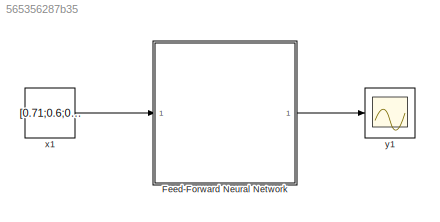
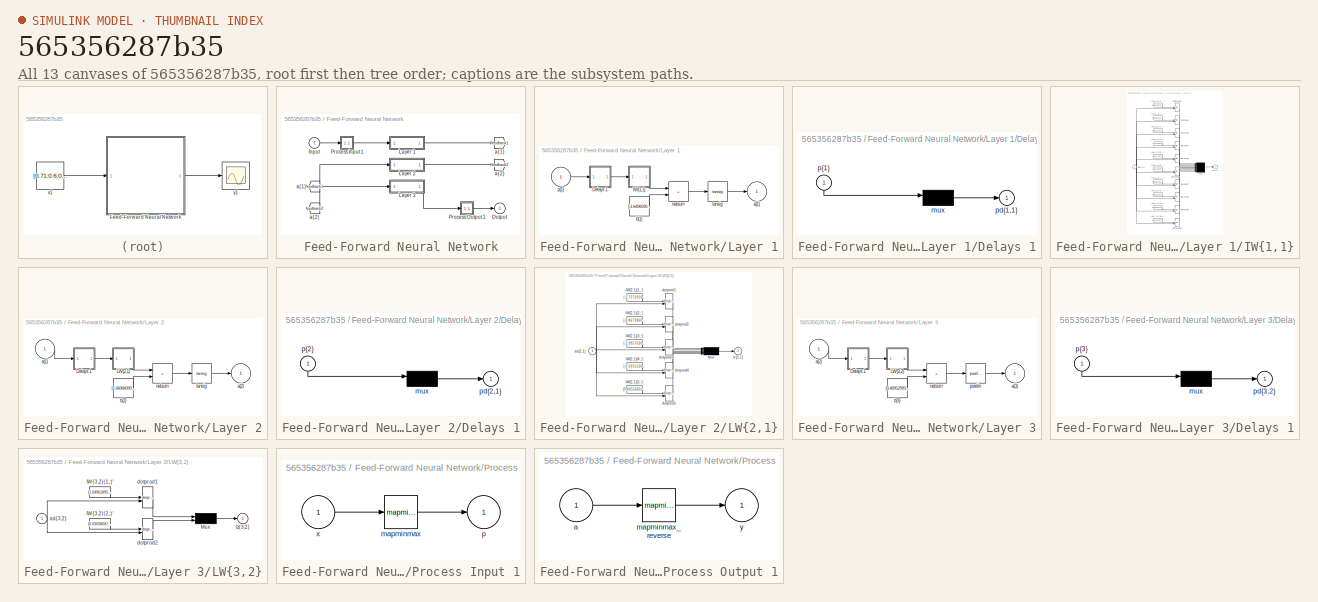
[diagram: thumbnail index - all 13 canvases of the model, root first then tree order]
MODEL slx_565356287b35
KIND model
CONFIG AbsTol = auto
CONFIG EnableMultiTasking = off
CONFIG FixedStep = auto
CONFIG MaxStep = auto
CONFIG MinStep = auto
CONFIG RelTol = 1e-3
CONFIG SampleTimeConstraint = Unconstrained
CONFIG SolverName = VariableStepAuto
CONFIG StartTime = 0.0
CONFIG StopTime = 10.0
BLOCK [SubSystem] Feed-Forward Neural Network
BLOCK [From] Feed-Forward Neural Network/ a{1} 
  GotoTag = feedback1
BLOCK [From] Feed-Forward Neural Network/ a{2} 
  GotoTag = feedback2
BLOCK [Inport] Feed-Forward Neural Network/Input
  PortDimensions = 8
  SampleTime = 0.1
BLOCK [SubSystem] Feed-Forward Neural Network/Layer 1
BLOCK [SubSystem] Feed-Forward Neural Network/Layer 1/Delays 1
BLOCK [Mux] Feed-Forward Neural Network/Layer 1/Delays 1/mux
  Inputs = 1
BLOCK [Outport] Feed-Forward Neural Network/Layer 1/Delays 1/pd{1,1}
BLOCK [Inport] Feed-Forward Neural Network/Layer 1/Delays 1/p{1}
  NameLocation = left
  PortDimensions = 8
  SampleTime = 0.1
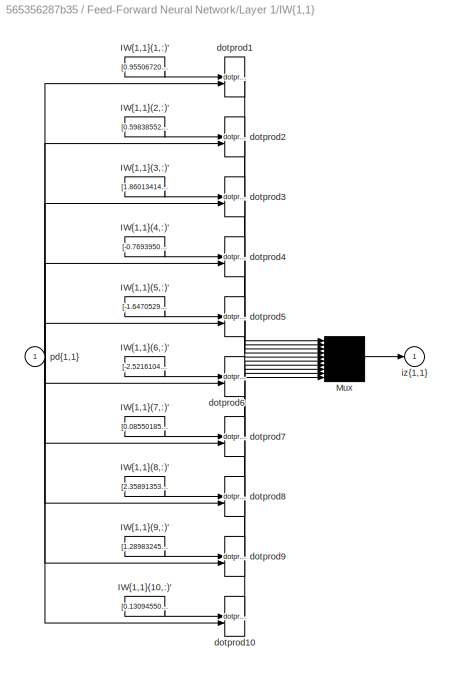
BLOCK [SubSystem] Feed-Forward Neural Network/Layer 1/IW{1,1}
BLOCK [Constant] Feed-Forward Neural Network/Layer 1/IW{1,1}/IW{1,1}(1,:)'
  Value = [0.9550672020210464463474409058107994496822357177734375;1.0619309266613214948193899545003660023212432861328125;0.84211140958875574380471107360790483653545379638671875;-0.220935913211211476525619445965276099741458892822265625;-0.84919262536313111500163586242706514894962310791015625;-0.3439777435312880715656547181424684822559356689453125;-0.9604815660913406105692047276534140110015869140625;0.9069616...<+46ch>
BLOCK [Constant] Feed-Forward Neural Network/Layer 1/IW{1,1}/IW{1,1}(10,:)'
  Value = [0.13094550257733150733230331752565689384937286376953125;-0.44310732298941513107592982123605906963348388671875;0.190013691803982975869757865439169108867645263671875;-0.5031790565881590904240283634862862527370452880859375;-1.3775142568912410734327522732201032340526580810546875;-2.71766299346461348562797866179607808589935302734375;-0.51708237107644483554480530074215494096279144287109375;-4.436536297...<+40ch>
BLOCK [Constant] Feed-Forward Neural Network/Layer 1/IW{1,1}/IW{1,1}(2,:)'
  Value = [0.59838552526456412206101731499074958264827728271484375;-0.342462421324904509045694567248574458062648773193359375;-0.342675805245884312899562473830883391201496124267578125;-1.71904317433271014436968471272848546504974365234375;-1.6904320403915971127162265474908053874969482421875;-0.7842827305839652485275337312486954033374786376953125;-0.70578545855254670726708354777656495571136474609375;0.63127173...<+46ch>
BLOCK [Constant] Feed-Forward Neural Network/Layer 1/IW{1,1}/IW{1,1}(3,:)'
  Value = [1.860134149250209478765327730798162519931793212890625;0.79559039072379011958702221818384714424610137939453125;1.22534084182909364102442850708030164241790771484375;2.18011250663608091571177283185534179210662841796875;-2.702187688561667133768651183345355093479156494140625;0.68479484410663771232208318906486965715885162353515625;1.088999670596825009027952546603046357631683349609375;-0.132623797761235...<+40ch>
BLOCK [Constant] Feed-Forward Neural Network/Layer 1/IW{1,1}/IW{1,1}(4,:)'
  Value = [-0.76939509688576090962186526667210273444652557373046875;3.015793683985509954226245099562220275402069091796875;0.144674661315467911748555707163177430629730224609375;-0.36591836890077000798981998741510324180126190185546875;2.414196432338601372435960001894272863864898681640625;-2.119416613542585370311144288280047476291656494140625;-1.627410657427237339334169519133865833282470703125;0.25389548329556...<+40ch>
BLOCK [Constant] Feed-Forward Neural Network/Layer 1/IW{1,1}/IW{1,1}(5,:)'
  Value = [-1.6470529390002484060318010961054824292659759521484375;3.964281501994268541722021836903877556324005126953125;0.782104558886292711150645118323154747486114501953125;1.132175008866808330054709585965611040592193603515625;0.054081566514974345472044348070994601584970951080322265625;-0.9132364865315205637585904696607030928134918212890625;-1.7536609484188543373051061280420981347560882568359375;-0.571265...<+48ch>
BLOCK [Constant] Feed-Forward Neural Network/Layer 1/IW{1,1}/IW{1,1}(6,:)'
  Value = [-2.5216104669478571764784646802581846714019775390625;1.289592944756588366317373584024608135223388671875;1.399920867973824645247304943040944635868072509765625;-0.85390194285240206273357443933491595089435577392578125;-0.70310740144474248580763742211274802684783935546875;-0.62207281185426188674369996078894473612308502197265625;4.21162479813697387953652651049196720123291015625;0.740312164151335272421...<+32ch>
BLOCK [Constant] Feed-Forward Neural Network/Layer 1/IW{1,1}/IW{1,1}(7,:)'
  Value = [0.08550185158370304794317462437902577221393585205078125;-1.7577471491265368452872053239843808114528656005859375;1.6072576084080980596269228044548071920871734619140625;0.312660138488050243221749724398250691592693328857421875;-0.45996840806510796983985756014590151607990264892578125;-1.3584484510814860414029681123793125152587890625;0.326177796523812901785532858411897905170917510986328125;0.525173928...<+45ch>
BLOCK [Constant] Feed-Forward Neural Network/Layer 1/IW{1,1}/IW{1,1}(8,:)'
  Value = [2.358913531123170148617873564944602549076080322265625;0.1779586187219111270696458859674748964607715606689453125;-1.2348329132143056607873177199508063495159149169921875;-1.9085163259384410050500946454121731221675872802734375;0.398080501901759420402271416605799458920955657958984375;0.2050653827957333585896293470796081237494945526123046875;-1.3156193814509424822034588942187838256359100341796875;-0.7...<+50ch>
BLOCK [Constant] Feed-Forward Neural Network/Layer 1/IW{1,1}/IW{1,1}(9,:)'
  Value = [1.289832458237830881131458227173425257205963134765625;-0.1513905596614662230070535997583647258579730987548828125;-0.493368686672613687704824769753031432628631591796875;0.196517638129850069628190567527781240642070770263671875;-0.411655250453523191556115534694981761276721954345703125;1.3613158007695032036821203291765414178371429443359375;1.5586628389293248897473631586763076484203338623046875;-0.428...<+52ch>
BLOCK [Mux] Feed-Forward Neural Network/Layer 1/IW{1,1}/Mux
  Inputs = 10
BLOCK [Reference] Feed-Forward Neural Network/Layer 1/IW{1,1}/dotprod1  REF=neural/Weight Functions/dotprod
  SourceBlock = neural/Weight Functions/dotprod
  SourceType = DOTPROD
BLOCK [Reference] Feed-Forward Neural Network/Layer 1/IW{1,1}/dotprod10  REF=neural/Weight Functions/dotprod
  SourceBlock = neural/Weight Functions/dotprod
  SourceType = DOTPROD
BLOCK [Reference] Feed-Forward Neural Network/Layer 1/IW{1,1}/dotprod2  REF=neural/Weight Functions/dotprod
  SourceBlock = neural/Weight Functions/dotprod
  SourceType = DOTPROD
BLOCK [Reference] Feed-Forward Neural Network/Layer 1/IW{1,1}/dotprod3  REF=neural/Weight Functions/dotprod
  SourceBlock = neural/Weight Functions/dotprod
  SourceType = DOTPROD
BLOCK [Reference] Feed-Forward Neural Network/Layer 1/IW{1,1}/dotprod4  REF=neural/Weight Functions/dotprod
  SourceBlock = neural/Weight Functions/dotprod
  SourceType = DOTPROD
BLOCK [Reference] Feed-Forward Neural Network/Layer 1/IW{1,1}/dotprod5  REF=neural/Weight Functions/dotprod
  SourceBlock = neural/Weight Functions/dotprod
  SourceType = DOTPROD
BLOCK [Reference] Feed-Forward Neural Network/Layer 1/IW{1,1}/dotprod6  REF=neural/Weight Functions/dotprod
  SourceBlock = neural/Weight Functions/dotprod
  SourceType = DOTPROD
BLOCK [Reference] Feed-Forward Neural Network/Layer 1/IW{1,1}/dotprod7  REF=neural/Weight Functions/dotprod
  SourceBlock = neural/Weight Functions/dotprod
  SourceType = DOTPROD
BLOCK [Reference] Feed-Forward Neural Network/Layer 1/IW{1,1}/dotprod8  REF=neural/Weight Functions/dotprod
  SourceBlock = neural/Weight Functions/dotprod
  SourceType = DOTPROD
BLOCK [Reference] Feed-Forward Neural Network/Layer 1/IW{1,1}/dotprod9  REF=neural/Weight Functions/dotprod
  SourceBlock = neural/Weight Functions/dotprod
  SourceType = DOTPROD
BLOCK [Outport] Feed-Forward Neural Network/Layer 1/IW{1,1}/iz{1,1}
BLOCK [Inport] Feed-Forward Neural Network/Layer 1/IW{1,1}/pd{1,1}
  PortDimensions = 8
  SampleTime = 0.1
BLOCK [Outport] Feed-Forward Neural Network/Layer 1/a{1}
  InitialOutput = [0;0;0;0;0;0;0;0;0;0]
BLOCK [Constant] Feed-Forward Neural Network/Layer 1/b{1}
  Value = [-1.649603094174988182629704169812612235546112060546875;-0.7159807765740386908959180800593458116054534912109375;-1.23397857794599818959113690652884542942047119140625;-0.5267978681864480261509697811561636626720428466796875;0.47660256084606411608461939977132715284824371337890625;-0.31840654326915862615265950807952322065830230712890625;0.0039216978998235056674825926847915980033576488494873046875;0.43...<+161ch>
BLOCK [Sum] Feed-Forward Neural Network/Layer 1/netsum
  IconShape = rectangular
  InputSameDT = on
  Inputs = 2
  OutDataTypeStr = Inherit: Same as first input
  SaturateOnIntegerOverflow = on
BLOCK [Inport] Feed-Forward Neural Network/Layer 1/p{1}
  PortDimensions = 8
  SampleTime = 0.1
BLOCK [Reference] Feed-Forward Neural Network/Layer 1/tansig  REF=neural/Transfer Functions/tansig
  SourceBlock = neural/Transfer Functions/tansig
  SourceType = TANSIG
BLOCK [SubSystem] Feed-Forward Neural Network/Layer 2
BLOCK [SubSystem] Feed-Forward Neural Network/Layer 2/Delays 1
BLOCK [Mux] Feed-Forward Neural Network/Layer 2/Delays 1/mux
  Inputs = 1
BLOCK [Outport] Feed-Forward Neural Network/Layer 2/Delays 1/pd{2,1}
BLOCK [Inport] Feed-Forward Neural Network/Layer 2/Delays 1/p{2}
  NameLocation = left
  PortDimensions = 10
  SampleTime = 0.1
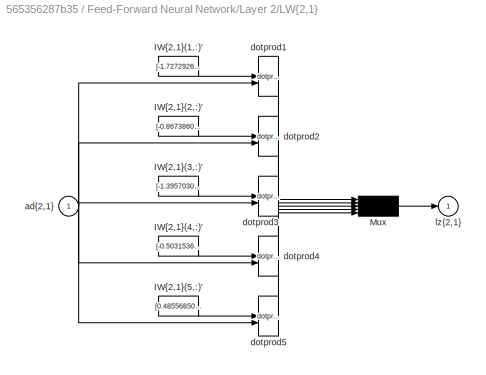
BLOCK [SubSystem] Feed-Forward Neural Network/Layer 2/LW{2,1}
BLOCK [Constant] Feed-Forward Neural Network/Layer 2/LW{2,1}/IW{2,1}(1,:)'
  Value = [-1.727292623090896928061965809320099651813507080078125;0.1641975245119942083960040690726600587368011474609375;-0.0419210378030532015980469395799445919692516326904296875;-3.08870983019992717544255356187932193279266357421875;3.897524305332207728014282110962085425853729248046875;0.5670931987031113674646576328086666762828826904296875;1.3616690889183880042168084401055239140987396240234375;-0.714535382...<+152ch>
BLOCK [Constant] Feed-Forward Neural Network/Layer 2/LW{2,1}/IW{2,1}(2,:)'
  Value = [-0.86738609998204896367468563767033629119396209716796875;-0.0320875453382797604096055010813870467245578765869140625;2.498452890283356708778228494338691234588623046875;-1.9214318957772242857373612423543818295001983642578125;0.89646009320482067384006086285808123648166656494140625;3.5708126608565038395681767724454402923583984375;-0.92810112351427431764960829241317696869373321533203125;0.300510182650...<+153ch>
BLOCK [Constant] Feed-Forward Neural Network/Layer 2/LW{2,1}/IW{2,1}(3,:)'
  Value = [-1.3957030454766379268249920642119832336902618408203125;-0.423057787283634134656296055254642851650714874267578125;-0.68631009765496464591905123597825877368450164794921875;0.168593520306543009912303432429325766861438751220703125;-1.0998016589595349667973778196028433740139007568359375;-1.246337154328091667565558964270167052745819091796875;0.04630513410644630789558817696160986088216304779052734375;0...<+166ch>
BLOCK [Constant] Feed-Forward Neural Network/Layer 2/LW{2,1}/IW{2,1}(4,:)'
  Value = [-0.50315361723133111837569231283850967884063720703125;0.478027579681182590576327129383571445941925048828125;-1.0157110847550974153108427344704978168010711669921875;1.4900899117023762574518741530482657253742218017578125;0.74483393876865466864956033532507717609405517578125;-1.431704797512789451019443731638602912425994873046875;1.1784321653700240428719325791462324559688568115234375;2.580010926108890...<+148ch>
BLOCK [Constant] Feed-Forward Neural Network/Layer 2/LW{2,1}/IW{2,1}(5,:)'
  Value = [0.485568500443138095779005425356444902718067169189453125;-1.1254518196867488999401984983705915510654449462890625;-0.02948982381011232278833489317548810504376888275146484375;-1.3072664898992714110903534674434922635555267333984375;-0.50546673431685362753995605089585296809673309326171875;-0.2350525483312300989435783549197367392480373382568359375;-1.006958978646490754371711773274000734090805053710937...<+167ch>
BLOCK [Mux] Feed-Forward Neural Network/Layer 2/LW{2,1}/Mux
  Inputs = 5
BLOCK [Inport] Feed-Forward Neural Network/Layer 2/LW{2,1}/ad{2,1}
  PortDimensions = 10
  SampleTime = 0.1
BLOCK [Reference] Feed-Forward Neural Network/Layer 2/LW{2,1}/dotprod1  REF=neural/Weight Functions/dotprod
  SourceBlock = neural/Weight Functions/dotprod
  SourceType = DOTPROD
BLOCK [Reference] Feed-Forward Neural Network/Layer 2/LW{2,1}/dotprod2  REF=neural/Weight Functions/dotprod
  SourceBlock = neural/Weight Functions/dotprod
  SourceType = DOTPROD
BLOCK [Reference] Feed-Forward Neural Network/Layer 2/LW{2,1}/dotprod3  REF=neural/Weight Functions/dotprod
  SourceBlock = neural/Weight Functions/dotprod
  SourceType = DOTPROD
BLOCK [Reference] Feed-Forward Neural Network/Layer 2/LW{2,1}/dotprod4  REF=neural/Weight Functions/dotprod
  SourceBlock = neural/Weight Functions/dotprod
  SourceType = DOTPROD
BLOCK [Reference] Feed-Forward Neural Network/Layer 2/LW{2,1}/dotprod5  REF=neural/Weight Functions/dotprod
  SourceBlock = neural/Weight Functions/dotprod
  SourceType = DOTPROD
BLOCK [Outport] Feed-Forward Neural Network/Layer 2/LW{2,1}/lz{2,1}
BLOCK [Inport] Feed-Forward Neural Network/Layer 2/a{1} 
  PortDimensions = 10
  SampleTime = 0.1
BLOCK [Outport] Feed-Forward Neural Network/Layer 2/a{2}
  InitialOutput = [0;0;0;0;0]
BLOCK [Constant] Feed-Forward Neural Network/Layer 2/b{2}
  Value = [1.6608439392692637692761081780190579593181610107421875;1.1196097544821312919083311498980037868022918701171875;1.2768699750426086847454598682816140353679656982421875;-0.8462161030496451186166950719780288636684417724609375;1.5883635199904941881499098599306307733058929443359375]
BLOCK [Sum] Feed-Forward Neural Network/Layer 2/netsum
  IconShape = rectangular
  InputSameDT = on
  Inputs = 2
  OutDataTypeStr = Inherit: Same as first input
  SaturateOnIntegerOverflow = on
BLOCK [Reference] Feed-Forward Neural Network/Layer 2/tansig  REF=neural/Transfer Functions/tansig
  SourceBlock = neural/Transfer Functions/tansig
  SourceType = TANSIG
BLOCK [SubSystem] Feed-Forward Neural Network/Layer 3
BLOCK [SubSystem] Feed-Forward Neural Network/Layer 3/Delays 1
BLOCK [Mux] Feed-Forward Neural Network/Layer 3/Delays 1/mux
  Inputs = 1
BLOCK [Outport] Feed-Forward Neural Network/Layer 3/Delays 1/pd{3,2}
BLOCK [Inport] Feed-Forward Neural Network/Layer 3/Delays 1/p{3}
  NameLocation = left
  PortDimensions = 5
  SampleTime = 0.1
BLOCK [SubSystem] Feed-Forward Neural Network/Layer 3/LW{3,2}
BLOCK [Constant] Feed-Forward Neural Network/Layer 3/LW{3,2}/IW{3,2}(1,:)'
  Value = [1.04961895747879285778481062152422964572906494140625;2.345125532378418586887391938944347202777862548828125;-0.470149106061811428158847547820187173783779144287109375;2.388230061958143135569798687356524169445037841796875;-0.009358842872607443796884041375960805453360080718994140625]
BLOCK [Constant] Feed-Forward Neural Network/Layer 3/LW{3,2}/IW{3,2}(2,:)'
  Value = [0.030386874345302218591857723595239804126322269439697265625;0.50467938201245055029886543707107193768024444580078125;1.3193264609069499382343337856582365930080413818359375;-0.1884655508131005963168291827969369478523731231689453125;-1.3529310302870014570686407751054503023624420166015625]
BLOCK [Mux] Feed-Forward Neural Network/Layer 3/LW{3,2}/Mux
  Inputs = 2
BLOCK [Inport] Feed-Forward Neural Network/Layer 3/LW{3,2}/ad{3,2}
  PortDimensions = 5
  SampleTime = 0.1
BLOCK [Reference] Feed-Forward Neural Network/Layer 3/LW{3,2}/dotprod1  REF=neural/Weight Functions/dotprod
  SourceBlock = neural/Weight Functions/dotprod
  SourceType = DOTPROD
BLOCK [Reference] Feed-Forward Neural Network/Layer 3/LW{3,2}/dotprod2  REF=neural/Weight Functions/dotprod
  SourceBlock = neural/Weight Functions/dotprod
  SourceType = DOTPROD
BLOCK [Outport] Feed-Forward Neural Network/Layer 3/LW{3,2}/lz{3,2}
BLOCK [Inport] Feed-Forward Neural Network/Layer 3/a{2} 
  PortDimensions = 5
  SampleTime = 0.1
BLOCK [Outport] Feed-Forward Neural Network/Layer 3/a{3}
  InitialOutput = [0;0]
BLOCK [Constant] Feed-Forward Neural Network/Layer 3/b{3}
  Value = [0.46952993617181115748593356329365633428096771240234375;-0.2566998782719041027888806638657115399837493896484375]
BLOCK [Sum] Feed-Forward Neural Network/Layer 3/netsum
  IconShape = rectangular
  InputSameDT = on
  Inputs = 2
  OutDataTypeStr = Inherit: Same as first input
  SaturateOnIntegerOverflow = on
BLOCK [Reference] Feed-Forward Neural Network/Layer 3/purelin  REF=neural/Transfer Functions/purelin
  SourceBlock = neural/Transfer Functions/purelin
  SourceType = PURELIN
BLOCK [Outport] Feed-Forward Neural Network/Output
  InitialOutput = [0;0]
BLOCK [SubSystem] Feed-Forward Neural Network/Process Input 1
BLOCK [Reference] Feed-Forward Neural Network/Process Input 1/mapminmax  REF=neural/Processing Functions/mapminmax
  SourceBlock = neural/Processing Functions/mapminmax
  SourceType = MAPMINMAX Preprocess
BLOCK [Outport] Feed-Forward Neural Network/Process Input 1/p
  PortDimensions = 8
  SampleTime = 0.1
BLOCK [Inport] Feed-Forward Neural Network/Process Input 1/x
  PortDimensions = 8
  SampleTime = 0.1
BLOCK [SubSystem] Feed-Forward Neural Network/Process Output 1
BLOCK [Inport] Feed-Forward Neural Network/Process Output 1/a
  PortDimensions = 2
  SampleTime = 0.1
BLOCK [Reference] Feed-Forward Neural Network/Process Output 1/mapminmax_reverse  REF=neural/Processing Functions/mapminmax_reverse
  SourceBlock = neural/Processing Functions/mapminmax_reverse
  SourceType = MAPMINMAX Reverse Process
BLOCK [Outport] Feed-Forward Neural Network/Process Output 1/y
  PortDimensions = 2
  SampleTime = 0.1
BLOCK [Goto] Feed-Forward Neural Network/a{1}
  GotoTag = feedback1
BLOCK [Goto] Feed-Forward Neural Network/a{2}
  GotoTag = feedback2
BLOCK [Constant] x1
  SampleTime = 0.1
  Value = [0.71;0.6;0.59;0.97;0.58;0.1;0.17;0.1]
BLOCK [Scope] y1
  Floating = off
  NumInputPorts = 1
LINE Feed-Forward Neural Network/ a{1} :1 -> Feed-Forward Neural Network/Layer 2:1
LINE Feed-Forward Neural Network/ a{2} :1 -> Feed-Forward Neural Network/Layer 3:1
LINE Feed-Forward Neural Network/Input:1 -> Feed-Forward Neural Network/Process Input 1:1
LINE Feed-Forward Neural Network/Layer 1/Delays 1/mux:1 -> Feed-Forward Neural Network/Layer 1/Delays 1/pd{1,1}:1
LINE Feed-Forward Neural Network/Layer 1/Delays 1/p{1}:1 -> Feed-Forward Neural Network/Layer 1/Delays 1/mux:1
LINE Feed-Forward Neural Network/Layer 1/Delays 1:1 -> Feed-Forward Neural Network/Layer 1/IW{1,1}:1
LINE Feed-Forward Neural Network/Layer 1/IW{1,1}/IW{1,1}(1,:)':1 -> Feed-Forward Neural Network/Layer 1/IW{1,1}/dotprod1:1
LINE Feed-Forward Neural Network/Layer 1/IW{1,1}/IW{1,1}(10,:)':1 -> Feed-Forward Neural Network/Layer 1/IW{1,1}/dotprod10:1
LINE Feed-Forward Neural Network/Layer 1/IW{1,1}/IW{1,1}(2,:)':1 -> Feed-Forward Neural Network/Layer 1/IW{1,1}/dotprod2:1
LINE Feed-Forward Neural Network/Layer 1/IW{1,1}/IW{1,1}(3,:)':1 -> Feed-Forward Neural Network/Layer 1/IW{1,1}/dotprod3:1
LINE Feed-Forward Neural Network/Layer 1/IW{1,1}/IW{1,1}(4,:)':1 -> Feed-Forward Neural Network/Layer 1/IW{1,1}/dotprod4:1
LINE Feed-Forward Neural Network/Layer 1/IW{1,1}/IW{1,1}(5,:)':1 -> Feed-Forward Neural Network/Layer 1/IW{1,1}/dotprod5:1
LINE Feed-Forward Neural Network/Layer 1/IW{1,1}/IW{1,1}(6,:)':1 -> Feed-Forward Neural Network/Layer 1/IW{1,1}/dotprod6:1
LINE Feed-Forward Neural Network/Layer 1/IW{1,1}/IW{1,1}(7,:)':1 -> Feed-Forward Neural Network/Layer 1/IW{1,1}/dotprod7:1
LINE Feed-Forward Neural Network/Layer 1/IW{1,1}/IW{1,1}(8,:)':1 -> Feed-Forward Neural Network/Layer 1/IW{1,1}/dotprod8:1
LINE Feed-Forward Neural Network/Layer 1/IW{1,1}/IW{1,1}(9,:)':1 -> Feed-Forward Neural Network/Layer 1/IW{1,1}/dotprod9:1
LINE Feed-Forward Neural Network/Layer 1/IW{1,1}/Mux:1 -> Feed-Forward Neural Network/Layer 1/IW{1,1}/iz{1,1}:1
LINE Feed-Forward Neural Network/Layer 1/IW{1,1}/dotprod10:1 -> Feed-Forward Neural Network/Layer 1/IW{1,1}/Mux:10
LINE Feed-Forward Neural Network/Layer 1/IW{1,1}/dotprod1:1 -> Feed-Forward Neural Network/Layer 1/IW{1,1}/Mux:1
LINE Feed-Forward Neural Network/Layer 1/IW{1,1}/dotprod2:1 -> Feed-Forward Neural Network/Layer 1/IW{1,1}/Mux:2
LINE Feed-Forward Neural Network/Layer 1/IW{1,1}/dotprod3:1 -> Feed-Forward Neural Network/Layer 1/IW{1,1}/Mux:3
LINE Feed-Forward Neural Network/Layer 1/IW{1,1}/dotprod4:1 -> Feed-Forward Neural Network/Layer 1/IW{1,1}/Mux:4
LINE Feed-Forward Neural Network/Layer 1/IW{1,1}/dotprod5:1 -> Feed-Forward Neural Network/Layer 1/IW{1,1}/Mux:5
LINE Feed-Forward Neural Network/Layer 1/IW{1,1}/dotprod6:1 -> Feed-Forward Neural Network/Layer 1/IW{1,1}/Mux:6
LINE Feed-Forward Neural Network/Layer 1/IW{1,1}/dotprod7:1 -> Feed-Forward Neural Network/Layer 1/IW{1,1}/Mux:7
LINE Feed-Forward Neural Network/Layer 1/IW{1,1}/dotprod8:1 -> Feed-Forward Neural Network/Layer 1/IW{1,1}/Mux:8
LINE Feed-Forward Neural Network/Layer 1/IW{1,1}/dotprod9:1 -> Feed-Forward Neural Network/Layer 1/IW{1,1}/Mux:9
NET Feed-Forward Neural Network/Layer 1/IW{1,1}/pd{1,1}:1 -> Feed-Forward Neural Network/Layer 1/IW{1,1}/dotprod10:2, Feed-Forward Neural Network/Layer 1/IW{1,1}/dotprod1:2, Feed-Forward Neural Network/Layer 1/IW{1,1}/dotprod2:2, Feed-Forward Neural Network/Layer 1/IW{1,1}/dotprod3:2, Feed-Forward Neural Network/Layer 1/IW{1,1}/dotprod4:2, Feed-Forward Neural Network/Layer 1/IW{1,1}/dotprod5:2, Feed-Forward Neural Network/Layer 1/IW{1,1}/dotprod6:2, Feed-Forward Neural Network/Layer 1/IW{1,1}/dotprod7:2, Feed-Forward Neural Network/Layer 1/IW{1,1}/dotprod8:2, Feed-Forward Neural Network/Layer 1/IW{1,1}/dotprod9:2
LINE Feed-Forward Neural Network/Layer 1/IW{1,1}:1 -> Feed-Forward Neural Network/Layer 1/netsum:1
LINE Feed-Forward Neural Network/Layer 1/b{1}:1 -> Feed-Forward Neural Network/Layer 1/netsum:2
LINE Feed-Forward Neural Network/Layer 1/netsum:1 -> Feed-Forward Neural Network/Layer 1/tansig:1
LINE Feed-Forward Neural Network/Layer 1/p{1}:1 -> Feed-Forward Neural Network/Layer 1/Delays 1:1
LINE Feed-Forward Neural Network/Layer 1/tansig:1 -> Feed-Forward Neural Network/Layer 1/a{1}:1
LINE Feed-Forward Neural Network/Layer 1:1 -> Feed-Forward Neural Network/a{1}:1
LINE Feed-Forward Neural Network/Layer 2/Delays 1/mux:1 -> Feed-Forward Neural Network/Layer 2/Delays 1/pd{2,1}:1
LINE Feed-Forward Neural Network/Layer 2/Delays 1/p{2}:1 -> Feed-Forward Neural Network/Layer 2/Delays 1/mux:1
LINE Feed-Forward Neural Network/Layer 2/Delays 1:1 -> Feed-Forward Neural Network/Layer 2/LW{2,1}:1
LINE Feed-Forward Neural Network/Layer 2/LW{2,1}/IW{2,1}(1,:)':1 -> Feed-Forward Neural Network/Layer 2/LW{2,1}/dotprod1:1
LINE Feed-Forward Neural Network/Layer 2/LW{2,1}/IW{2,1}(2,:)':1 -> Feed-Forward Neural Network/Layer 2/LW{2,1}/dotprod2:1
LINE Feed-Forward Neural Network/Layer 2/LW{2,1}/IW{2,1}(3,:)':1 -> Feed-Forward Neural Network/Layer 2/LW{2,1}/dotprod3:1
LINE Feed-Forward Neural Network/Layer 2/LW{2,1}/IW{2,1}(4,:)':1 -> Feed-Forward Neural Network/Layer 2/LW{2,1}/dotprod4:1
LINE Feed-Forward Neural Network/Layer 2/LW{2,1}/IW{2,1}(5,:)':1 -> Feed-Forward Neural Network/Layer 2/LW{2,1}/dotprod5:1
LINE Feed-Forward Neural Network/Layer 2/LW{2,1}/Mux:1 -> Feed-Forward Neural Network/Layer 2/LW{2,1}/lz{2,1}:1
NET Feed-Forward Neural Network/Layer 2/LW{2,1}/ad{2,1}:1 -> Feed-Forward Neural Network/Layer 2/LW{2,1}/dotprod1:2, Feed-Forward Neural Network/Layer 2/LW{2,1}/dotprod2:2, Feed-Forward Neural Network/Layer 2/LW{2,1}/dotprod3:2, Feed-Forward Neural Network/Layer 2/LW{2,1}/dotprod4:2, Feed-Forward Neural Network/Layer 2/LW{2,1}/dotprod5:2
LINE Feed-Forward Neural Network/Layer 2/LW{2,1}/dotprod1:1 -> Feed-Forward Neural Network/Layer 2/LW{2,1}/Mux:1
LINE Feed-Forward Neural Network/Layer 2/LW{2,1}/dotprod2:1 -> Feed-Forward Neural Network/Layer 2/LW{2,1}/Mux:2
LINE Feed-Forward Neural Network/Layer 2/LW{2,1}/dotprod3:1 -> Feed-Forward Neural Network/Layer 2/LW{2,1}/Mux:3
LINE Feed-Forward Neural Network/Layer 2/LW{2,1}/dotprod4:1 -> Feed-Forward Neural Network/Layer 2/LW{2,1}/Mux:4
LINE Feed-Forward Neural Network/Layer 2/LW{2,1}/dotprod5:1 -> Feed-Forward Neural Network/Layer 2/LW{2,1}/Mux:5
LINE Feed-Forward Neural Network/Layer 2/LW{2,1}:1 -> Feed-Forward Neural Network/Layer 2/netsum:1
LINE Feed-Forward Neural Network/Layer 2/a{1} :1 -> Feed-Forward Neural Network/Layer 2/Delays 1:1
LINE Feed-Forward Neural Network/Layer 2/b{2}:1 -> Feed-Forward Neural Network/Layer 2/netsum:2
LINE Feed-Forward Neural Network/Layer 2/netsum:1 -> Feed-Forward Neural Network/Layer 2/tansig:1
LINE Feed-Forward Neural Network/Layer 2/tansig:1 -> Feed-Forward Neural Network/Layer 2/a{2}:1
LINE Feed-Forward Neural Network/Layer 2:1 -> Feed-Forward Neural Network/a{2}:1
LINE Feed-Forward Neural Network/Layer 3/Delays 1/mux:1 -> Feed-Forward Neural Network/Layer 3/Delays 1/pd{3,2}:1
LINE Feed-Forward Neural Network/Layer 3/Delays 1/p{3}:1 -> Feed-Forward Neural Network/Layer 3/Delays 1/mux:1
LINE Feed-Forward Neural Network/Layer 3/Delays 1:1 -> Feed-Forward Neural Network/Layer 3/LW{3,2}:1
LINE Feed-Forward Neural Network/Layer 3/LW{3,2}/IW{3,2}(1,:)':1 -> Feed-Forward Neural Network/Layer 3/LW{3,2}/dotprod1:1
LINE Feed-Forward Neural Network/Layer 3/LW{3,2}/IW{3,2}(2,:)':1 -> Feed-Forward Neural Network/Layer 3/LW{3,2}/dotprod2:1
LINE Feed-Forward Neural Network/Layer 3/LW{3,2}/Mux:1 -> Feed-Forward Neural Network/Layer 3/LW{3,2}/lz{3,2}:1
NET Feed-Forward Neural Network/Layer 3/LW{3,2}/ad{3,2}:1 -> Feed-Forward Neural Network/Layer 3/LW{3,2}/dotprod1:2, Feed-Forward Neural Network/Layer 3/LW{3,2}/dotprod2:2
LINE Feed-Forward Neural Network/Layer 3/LW{3,2}/dotprod1:1 -> Feed-Forward Neural Network/Layer 3/LW{3,2}/Mux:1
LINE Feed-Forward Neural Network/Layer 3/LW{3,2}/dotprod2:1 -> Feed-Forward Neural Network/Layer 3/LW{3,2}/Mux:2
LINE Feed-Forward Neural Network/Layer 3/LW{3,2}:1 -> Feed-Forward Neural Network/Layer 3/netsum:1
LINE Feed-Forward Neural Network/Layer 3/a{2} :1 -> Feed-Forward Neural Network/Layer 3/Delays 1:1
LINE Feed-Forward Neural Network/Layer 3/b{3}:1 -> Feed-Forward Neural Network/Layer 3/netsum:2
LINE Feed-Forward Neural Network/Layer 3/netsum:1 -> Feed-Forward Neural Network/Layer 3/purelin:1
LINE Feed-Forward Neural Network/Layer 3/purelin:1 -> Feed-Forward Neural Network/Layer 3/a{3}:1
LINE Feed-Forward Neural Network/Layer 3:1 -> Feed-Forward Neural Network/Process Output 1:1
LINE Feed-Forward Neural Network/Process Input 1/mapminmax:1 -> Feed-Forward Neural Network/Process Input 1/p:1
LINE Feed-Forward Neural Network/Process Input 1/x:1 -> Feed-Forward Neural Network/Process Input 1/mapminmax:1
LINE Feed-Forward Neural Network/Process Input 1:1 -> Feed-Forward Neural Network/Layer 1:1
LINE Feed-Forward Neural Network/Process Output 1/a:1 -> Feed-Forward Neural Network/Process Output 1/mapminmax_reverse:1
LINE Feed-Forward Neural Network/Process Output 1/mapminmax_reverse:1 -> Feed-Forward Neural Network/Process Output 1/y:1
LINE Feed-Forward Neural Network/Process Output 1:1 -> Feed-Forward Neural Network/Output:1
LINE Feed-Forward Neural Network:1 -> y1:1
LINE x1:1 -> Feed-Forward Neural Network:1
note: NET lines group one-source signal fan-out (src -> all destinations, sorted); 1:1 wires keep LINE
